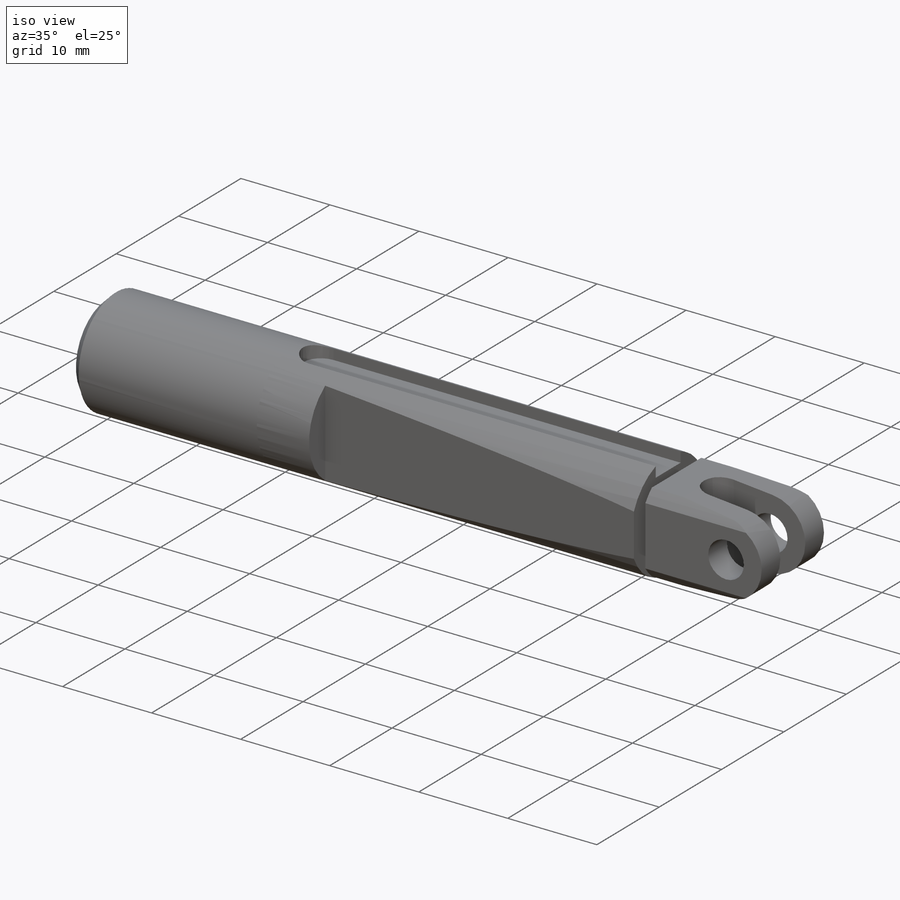
[diagram: iso view]
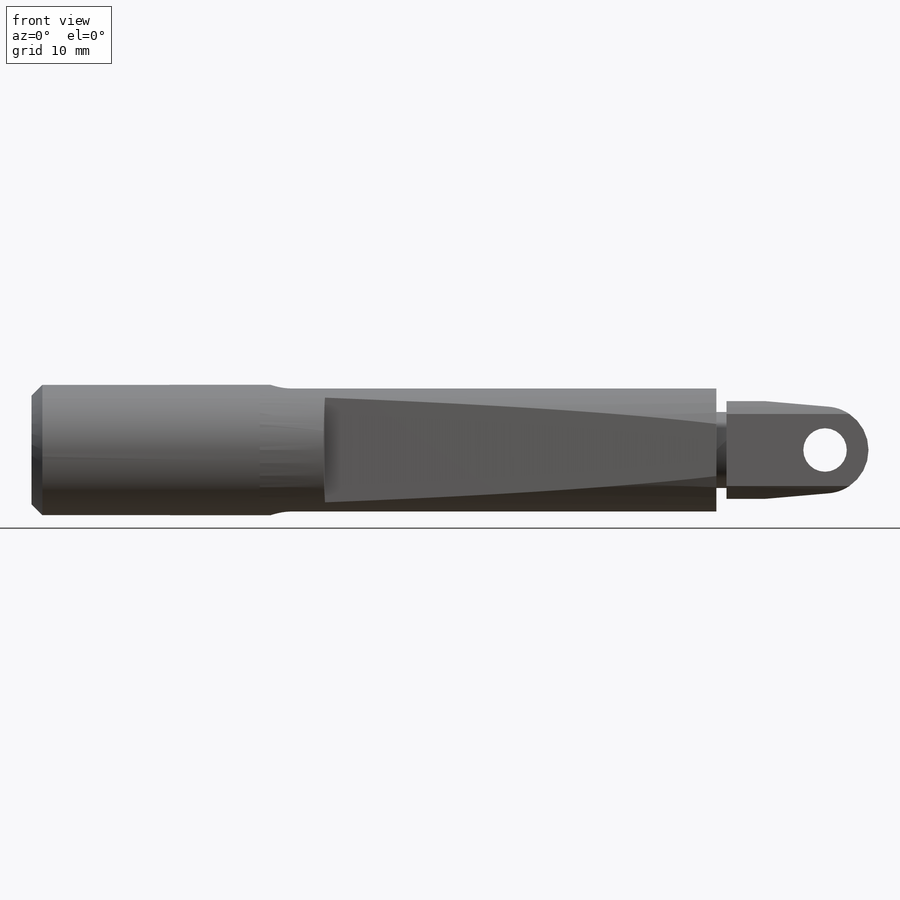
[diagram: front view]
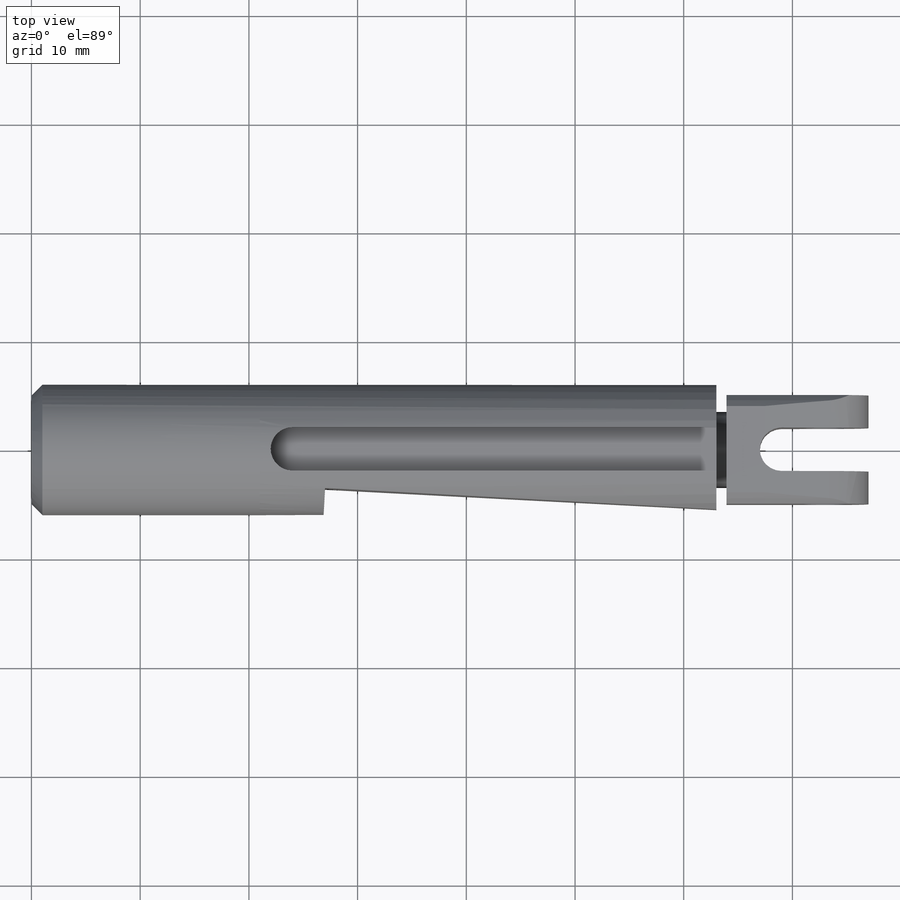
[diagram: top view]
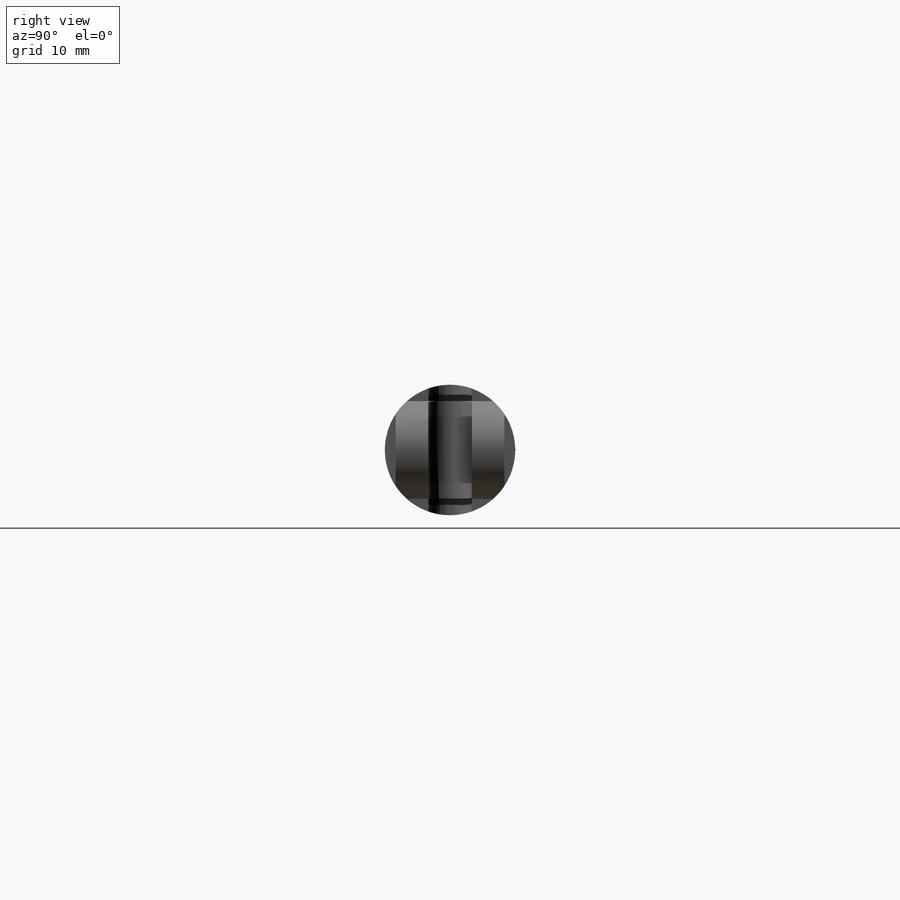
[diagram: right view]
SOLIDWORKS PART (.sldprt)
format: sldprt  version: not decoded by parser v0  size: 487,424 bytes
history: native  units: mm
features: sketch x10, cut_extrude x7, plane x4, fillet x3, material x1, revolve x1, thread x1, extrude x1, cut_revolve x1, chamfer x1, move_body x1 (+9 scaffold rows collapsed; 1 parser-record rows omitted)
feature tree (41):
  scaffold x9  (default folders/planes/origin — collapsed)
  material  "1.0037 (S235JR)"
  plane  "Vorne"
  plane  "Oben"
  plane  "Rechts"
  sketch  "Skizze1"  dims[c1.D1=12.0mm c1.D2=20.0mm c1.D3=3.0mm c1.D4=50.0mm c1.D5=10.0mm c2.D2=53.0mm c2.D3=10.0mm]
  revolve  "Rotation1"  [1 undecoded]
  thread  "Gewindedarstellung1"  Diameter=21mm  [1 undecoded]
  sketch  "Skizze2"  dims[D1=14.0mm D2=18.0mm]
  extrude  "Aufsatz-Linear austragen1"  Depth=18mm
  sketch  "Skizze3"  dims[D1=7.0mm D2=4.0mm D7=25.0mm D8=25.0mm D3=10.0mm D4=7.0mm D5=7.0mm D6=4.0mm]
  cut_extrude  "Schnitt-Linear austragen1"  [1 undecoded]
  sketch  "Skizze4"  dims[D1=4.0mm D2=4.0mm D3=15.0mm]
  cut_extrude  "Schnitt-Linear austragen2"  [1 undecoded]
  sketch  "Skizze7"  dims[c1.D1=2.5mm c1.D2=3.0mm c1.D3=5.5mm c1.D4=6.0mm c1.D5=20.0mm c1.D6=33.0mm c2.D1=17.0mm c2.D5=36.0mm c2.D2=2.0mm c2.D6=4.0mm c2.D7=4.0mm c3.D2=1.5mm]
  cut_extrude  "Schnitt-Linear austragen4"  [1 undecoded]
  plane  "Ebene1"
  sketch  "Skizze9"
  cut_extrude  "Schnitt-Linear austragen5"  Depth=5mm
  sketch  "Skizze11"  dims[D1=7.0mm D2=0.94mm]
  cut_revolve  "Schnitt-Rotation1"  Angle=360deg
  sketch  "Skizze14"  dims[D1=4.5mm D2=4.5mm D3=3.0mm D4=3.0mm]
  cut_extrude  "Schnitt-Linear austragen7"  Depth=45mm
  chamfer  "Fase1"  Distance=1mm Angle=45deg
  sketch  "Skizze15"  dims[c1.D5=4.0mm c1.D1=3.5mm c1.D2=4.5mm c1.D3=6.0mm c2.D2=1.5mm c3.D2=8.5deg c3.D3=~10.171214mm c4.D3=8.5deg c5.D3=67.0mm c5.D4=3.5mm c6.D4=8.5deg c6.D2=3.5mm c7.D2=~4.983481deg c8.D2=3.5mm]
  cut_extrude  "Schnitt-Linear austragen8"  [1 undecoded]
  sketch  "Skizze16"  dims[D1=10.0mm]
  cut_extrude  "Schnitt-Linear austragen9"  [1 undecoded]
  fillet  "Verrundung2"  [1 undecoded]
  fillet  "Verrundung3"  [1 undecoded]
  fillet  "Verrundung4"  [1 undecoded]
  parser-record x1  (decoder bookkeeping rows leaked as tree rows — omitted from the tree; the rows remain in map.json)
  move_body  "Körper-Verschieben/Kopieren1"
decode coverage: 15 of 26 modeling features carry decoded parameters
note: ~ marks probable driven/reference dimensions
note: 10 parameter values undecoded
summary: no parameter record found for 9 features
note: suppression state not decoded; provenance and decode notes live in map.json
